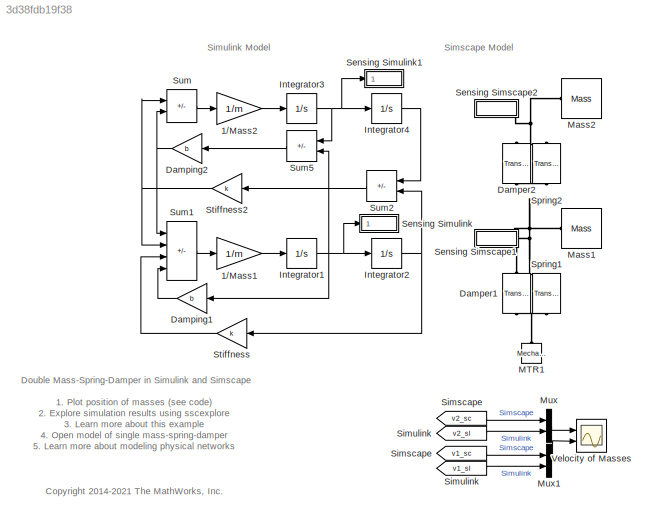
MODEL slx_3d38fdb19f38
KIND model
CONFIG AbsTol = 1e-3
CONFIG EnableMultiTasking = on
CONFIG FixedStep = auto
CONFIG MaxStep = 0.05
CONFIG MinStep = auto
CONFIG PostLoadFcn = m = 3.600;     % kg\nk = 400;    % N/m\nb = 10;      % Ns/m
CONFIG RelTol = 1e-3
CONFIG SampleTimeConstraint = Unconstrained
CONFIG SolverName = VariableStepAuto
CONFIG StartTime = 0.0
CONFIG StopTime = 10.0
BLOCK [Gain] 1//Mass1
  Gain = 1/m
  OutDataTypeStr = Inherit: Same as input
  ParamDataTypeStr = Inherit: Same as input
  SaturateOnIntegerOverflow = on
BLOCK [Gain] 1//Mass2
  Gain = 1/m
  OutDataTypeStr = Inherit: Same as input
  ParamDataTypeStr = Inherit: Same as input
  SaturateOnIntegerOverflow = on
BLOCK [Reference] Damper1  REF=fl_lib/Mechanical/Translational
Elements/Translational Damper
  NameLocation = left
  Ports = [0, 0, 0, 0, 0, 1, 1]
  SourceBlock = fl_lib/Mechanical/Translational\nElements/Translational Damper
  SourceProductBaseCode = SS
  SourceType = Translational Damper
BLOCK [Reference] Damper2  REF=fl_lib/Mechanical/Translational
Elements/Translational Damper
  NameLocation = left
  Ports = [0, 0, 0, 0, 0, 1, 1]
  SourceBlock = fl_lib/Mechanical/Translational\nElements/Translational Damper
  SourceProductBaseCode = SS
  SourceType = Translational Damper
BLOCK [Gain] Damping1
  Gain = b
  OutDataTypeStr = Inherit: Same as input
  ParamDataTypeStr = Inherit: Same as input
  SaturateOnIntegerOverflow = on
BLOCK [Gain] Damping2
  Gain = b
  OutDataTypeStr = Inherit: Same as input
  ParamDataTypeStr = Inherit: Same as input
  SaturateOnIntegerOverflow = on
BLOCK [Integrator] Integrator1
  Ports = [1, 1]
BLOCK [Integrator] Integrator2
  AttributesFormatString = x0 = %<InitialCondition> m
  InitialCondition = 1
  Ports = [1, 1]
BLOCK [Integrator] Integrator3
  Ports = [1, 1]
BLOCK [Integrator] Integrator4
  AttributesFormatString = x0 = %<InitialCondition> m
  InitialCondition = 2
  Ports = [1, 1]
BLOCK [Reference] MTR1  REF=fl_lib/Mechanical/Translational
Elements/Mechanical
Translational
Reference
  NameLocation = right
  Ports = [0, 0, 0, 0, 0, 1]
  SourceBlock = fl_lib/Mechanical/Translational\nElements/Mechanical\nTranslational\nReference
  SourceProductBaseCode = SS
  SourceType = Mechanical\nTranslational\nReference
BLOCK [Reference] Mass1  REF=fl_lib/Mechanical/Translational
Elements/Mass
  Ports = [0, 0, 0, 0, 0, 1]
  SourceBlock = fl_lib/Mechanical/Translational\nElements/Mass
  SourceProductBaseCode = SS
  SourceType = Mass
BLOCK [Reference] Mass2  REF=fl_lib/Mechanical/Translational
Elements/Mass
  Ports = [0, 0, 0, 0, 0, 1]
  SourceBlock = fl_lib/Mechanical/Translational\nElements/Mass
  SourceProductBaseCode = SS
  SourceType = Mass
BLOCK [Mux] Mux
  DisplayOption = bar
  Inputs = 2
  Ports = [2, 1]
BLOCK [Mux] Mux1
  DisplayOption = bar
  Inputs = 2
  Ports = [2, 1]
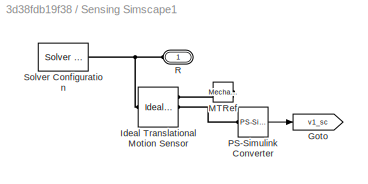
BLOCK [SubSystem] Sensing Simscape1
  Ports = [0, 0, 0, 0, 0, 1]
  RequestExecContextInheritance = off
BLOCK [Goto] Sensing Simscape1/Goto
  GotoTag = v1_sc
  TagVisibility = global
BLOCK [Reference] Sensing Simscape1/Ideal Translational Motion Sensor  REF=fl_lib/Mechanical/Mechanical Sensors/Ideal Translational
Motion Sensor
  Ports = [0, 0, 0, 0, 0, 1, 3]
  SourceBlock = fl_lib/Mechanical/Mechanical Sensors/Ideal Translational\nMotion Sensor
  SourceProductBaseCode = SS
  SourceType = Ideal Translational\nMotion Sensor
BLOCK [Reference] Sensing Simscape1/MTRef  REF=fl_lib/Mechanical/Translational
Elements/Mechanical
Translational
Reference
  NameLocation = top
  Ports = [0, 0, 0, 0, 0, 1]
  SourceBlock = fl_lib/Mechanical/Translational\nElements/Mechanical\nTranslational\nReference
  SourceProductBaseCode = SS
  SourceType = Mechanical\nTranslational\nReference
BLOCK [Reference] Sensing Simscape1/PS-Simulink Converter  REF=nesl_utility/PS-Simulink
Converter
  Ports = [0, 1, 0, 0, 0, 1]
  SourceBlock = nesl_utility/PS-Simulink\nConverter
  SourceProductBaseCode = PW,SS
  SourceType = PS-Simulink\nConverter
BLOCK [PMIOPort] Sensing Simscape1/R
  Side = Left
BLOCK [Reference] Sensing Simscape1/Solver Configuration  REF=nesl_utility/Solver
Configuration
  NameLocation = top
  Ports = [0, 0, 0, 0, 0, 0, 1]
  SourceBlock = nesl_utility/Solver\nConfiguration
  SourceProductBaseCode = PW,SS
  SourceType = Solver\nConfiguration
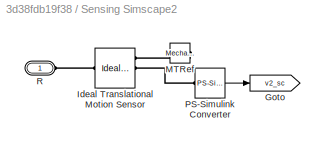
BLOCK [SubSystem] Sensing Simscape2
  Ports = [0, 0, 0, 0, 0, 1]
  RequestExecContextInheritance = off
BLOCK [Goto] Sensing Simscape2/Goto
  GotoTag = v2_sc
  TagVisibility = global
BLOCK [Reference] Sensing Simscape2/Ideal Translational Motion Sensor  REF=fl_lib/Mechanical/Mechanical Sensors/Ideal Translational
Motion Sensor
  Ports = [0, 0, 0, 0, 0, 1, 3]
  SourceBlock = fl_lib/Mechanical/Mechanical Sensors/Ideal Translational\nMotion Sensor
  SourceProductBaseCode = SS
  SourceType = Ideal Translational\nMotion Sensor
BLOCK [Reference] Sensing Simscape2/MTRef  REF=fl_lib/Mechanical/Translational
Elements/Mechanical
Translational
Reference
  NameLocation = top
  Ports = [0, 0, 0, 0, 0, 1]
  SourceBlock = fl_lib/Mechanical/Translational\nElements/Mechanical\nTranslational\nReference
  SourceProductBaseCode = SS
  SourceType = Mechanical\nTranslational\nReference
BLOCK [Reference] Sensing Simscape2/PS-Simulink Converter  REF=nesl_utility/PS-Simulink
Converter
  Ports = [0, 1, 0, 0, 0, 1]
  SourceBlock = nesl_utility/PS-Simulink\nConverter
  SourceProductBaseCode = PW,SS
  SourceType = PS-Simulink\nConverter
BLOCK [PMIOPort] Sensing Simscape2/R
  NameLocation = top
  Side = Left
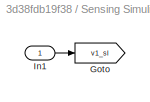
BLOCK [SubSystem] Sensing Simulink
  NameLocation = top
  Ports = [1]
  RequestExecContextInheritance = off
BLOCK [Goto] Sensing Simulink/Goto
  GotoTag = v1_sl
  TagVisibility = global
BLOCK [Inport] Sensing Simulink/In1
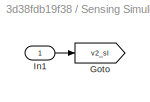
BLOCK [SubSystem] Sensing Simulink1
  NameLocation = top
  Ports = [1]
  RequestExecContextInheritance = off
BLOCK [Goto] Sensing Simulink1/Goto
  GotoTag = v2_sl
  TagVisibility = global
BLOCK [Inport] Sensing Simulink1/In1
BLOCK [From] Simscape
  GotoTag = v2_sc
  TagVisibility = global
BLOCK [From] Simscape 
  GotoTag = v1_sc
  NameLocation = top
  TagVisibility = global
BLOCK [From] Simulink
  GotoTag = v2_sl
  NameLocation = top
  TagVisibility = global
BLOCK [From] Simulink 
  GotoTag = v1_sl
  NameLocation = top
  TagVisibility = global
BLOCK [Reference] Spring1  REF=fl_lib/Mechanical/Translational
Elements/Translational Spring
  AttributesFormatString = x0 = %<x> %<x_unit>
  NameLocation = right
  Ports = [0, 0, 0, 0, 0, 1, 1]
  SourceBlock = fl_lib/Mechanical/Translational\nElements/Translational Spring
  SourceProductBaseCode = SS
  SourceType = Translational Spring
BLOCK [Reference] Spring2  REF=fl_lib/Mechanical/Translational
Elements/Translational Spring
  AttributesFormatString = x0 = %<x> %<x_unit>
  NameLocation = right
  Ports = [0, 0, 0, 0, 0, 1, 1]
  SourceBlock = fl_lib/Mechanical/Translational\nElements/Translational Spring
  SourceProductBaseCode = SS
  SourceType = Translational Spring
BLOCK [Gain] Stiffness
  Gain = k
  OutDataTypeStr = Inherit: Same as input
  ParamDataTypeStr = Inherit: Same as input
  SaturateOnIntegerOverflow = on
BLOCK [Gain] Stiffness2
  Gain = k
  OutDataTypeStr = Inherit: Same as input
  ParamDataTypeStr = Inherit: Same as input
  SaturateOnIntegerOverflow = on
BLOCK [Sum] Sum
  IconShape = rectangular
  InputSameDT = on
  Inputs = --
  OutDataTypeStr = Inherit: Same as first input
  Ports = [2, 1]
  SaturateOnIntegerOverflow = on
BLOCK [Sum] Sum1
  IconShape = rectangular
  InputSameDT = on
  Inputs = ++--
  OutDataTypeStr = Inherit: Same as first input
  Ports = [4, 1]
  SaturateOnIntegerOverflow = on
BLOCK [Sum] Sum2
  IconShape = rectangular
  InputSameDT = on
  Inputs = +-
  NameLocation = top
  OutDataTypeStr = Inherit: Same as first input
  Ports = [2, 1]
  SaturateOnIntegerOverflow = on
BLOCK [Sum] Sum5
  IconShape = rectangular
  InputSameDT = on
  Inputs = +-
  OutDataTypeStr = Inherit: Same as first input
  Ports = [2, 1]
  SaturateOnIntegerOverflow = on
BLOCK [Scope] Velocity of Masses
  Floating = off
  NumInputPorts = 2
  Ports = [2]
  ScopeSpecificationString = Simulink.scopes.TimeScopeBlockCfg('CurrentConfiguration', extmgr.ConfigurationSet(extmgr.Configuration('Core','General UI',true,'FigureColor',[0.501960784313725 0.501960784313725 0.501960784313725]),extmgr.Configuration('Core','Source UI',true),extmgr.Configuration('Sources','WiredSimulink',true,'DataLoggingSaveFormat','Array','DataLoggingLimitDataPoints',true,'DataLoggingDecimation','1'),extmgr.C...<+3805ch>
ANNOTATION (root): Simulink Model
ANNOTATION (root): 1. Plot position of masses ( see code ) 2. Explore simulation results using sscexplore 3. Learn more about this example 4. Open model of single mass-spring-damper 5. Learn more about modeling physical networks
ANNOTATION (root): Simscape Model
ANNOTATION (root): <copyright redacted>
ANNOTATION (root): Double Mass-Spring-Damper in Simulink and Simscape
LINE 1//Mass1:1 -> Integrator1:1
LINE 1//Mass2:1 -> Integrator3:1
LINE Damping1:1 -> Sum1:4
NET Damping2:1 -> Sum1:1, Sum:2
NET Integrator1:1 -> Damping1:1, Integrator2:1, Sensing Simulink:1, Sum5:2
NET Integrator2:1 -> Stiffness:1, Sum2:2
NET Integrator3:1 -> Integrator4:1, Sensing Simulink1:1, Sum5:1
LINE Integrator4:1 -> Sum2:1
LINE Mux1:1 -> Velocity of Masses:2
LINE Mux:1 -> Velocity of Masses:1
LINE Sensing Simscape1/PS-Simulink Converter:1 -> Sensing Simscape1/Goto:1
LINE Sensing Simscape2/PS-Simulink Converter:1 -> Sensing Simscape2/Goto:1
LINE Sensing Simulink/In1:1 -> Sensing Simulink/Goto:1
LINE Sensing Simulink1/In1:1 -> Sensing Simulink1/Goto:1
LINE Simscape :1 -> Mux1:1
LINE Simscape:1 -> Mux:1
LINE Simulink :1 -> Mux1:2
LINE Simulink:1 -> Mux:2
NET Stiffness2:1 -> Sum1:2, Sum:1
LINE Stiffness:1 -> Sum1:3
LINE Sum1:1 -> 1//Mass1:1
LINE Sum2:1 -> Stiffness2:1
LINE Sum5:1 -> Damping2:1
LINE Sum:1 -> 1//Mass2:1
PNET net1: Damper1:LConn1 -- Damper2:RConn1 -- Mass1:LConn1 -- Sensing Simscape1:LConn1 -- Spring1:LConn1 -- Spring2:RConn1
PNET net2: Damper1:RConn1 -- MTR1:LConn1 -- Spring1:RConn1
PNET net3: Damper2:LConn1 -- Mass2:LConn1 -- Sensing Simscape2:LConn1 -- Spring2:LConn1
PNET net4: Sensing Simscape1/Ideal Translational Motion Sensor:LConn1 -- Sensing Simscape1/R:RConn1 -- Sensing Simscape1/Solver Configuration:RConn1
PLINE Sensing Simscape1/Ideal Translational Motion Sensor:RConn1 -- Sensing Simscape1/MTRef:LConn1
PLINE Sensing Simscape1/Ideal Translational Motion Sensor:RConn2 -- Sensing Simscape1/PS-Simulink Converter:LConn1
PLINE Sensing Simscape2/Ideal Translational Motion Sensor:LConn1 -- Sensing Simscape2/R:RConn1
PLINE Sensing Simscape2/Ideal Translational Motion Sensor:RConn1 -- Sensing Simscape2/MTRef:LConn1
PLINE Sensing Simscape2/Ideal Translational Motion Sensor:RConn2 -- Sensing Simscape2/PS-Simulink Converter:LConn1
note: NET lines group one-source signal fan-out (src -> all destinations, sorted); 1:1 wires keep LINE; PNET lines group multi-terminal physical nets as a canonical sorted terminal list (undirected conserving connections); 2-terminal nets keep the pairwise PLINE form
